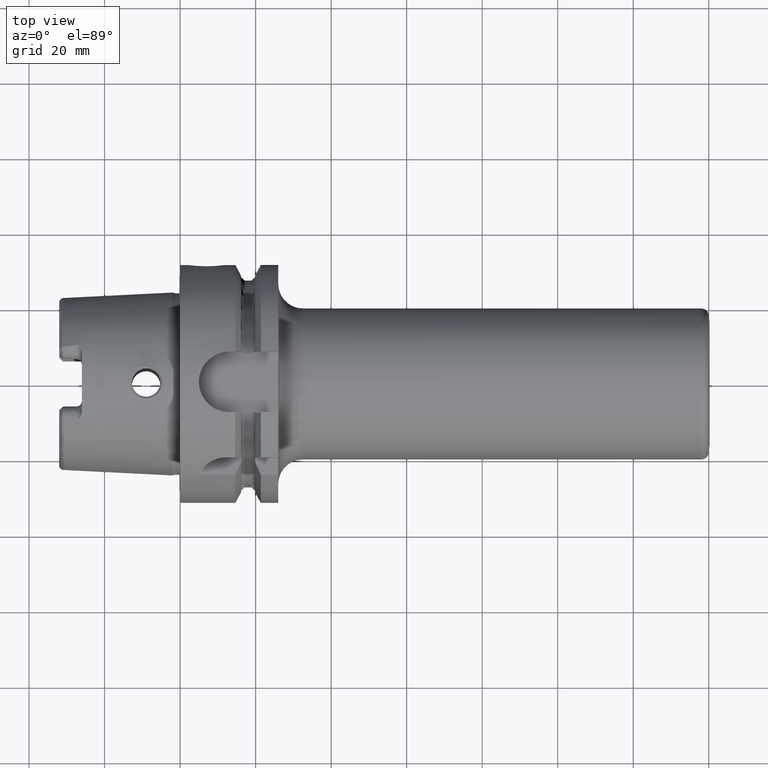
[diagram: clean part render]
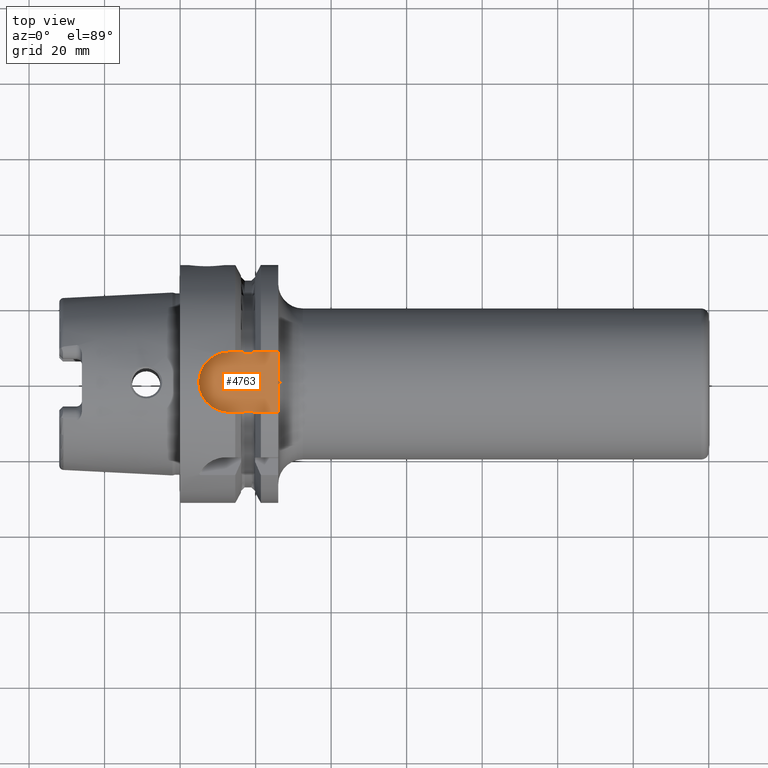
[diagram: same view with one face highlighted and labeled with its STEP entity id]
A machine part, top view. The second image highlights one B-rep face of the part: STEP entity #4763.
In plain terms, the highlighted planar face has unit normal (0, 0, 1).
Its self-contained STEP definition (entity closure, byte-faithful):
#1235=CARTESIAN_POINT('',(1.670911310946E1,8.0175E0,2.64E1));
#1236=CARTESIAN_POINT('',(1.673352951994E1,7.979074793464E0,2.64E1));
#1237=CARTESIAN_POINT('',(1.678346969240E1,7.908219856299E0,2.64E1));
#1238=CARTESIAN_POINT('',(1.686140323483E1,7.821166046425E0,2.64E1));
#1239=CARTESIAN_POINT('',(1.694700550698E1,7.751989508750E0,2.64E1));
#1240=CARTESIAN_POINT('',(1.703710106542E1,7.709022207033E0,2.64E1));
#1241=CARTESIAN_POINT('',(1.709569678300E1,7.7E0,2.64E1));
#1242=CARTESIAN_POINT('',(1.7125E1,7.7E0,2.64E1));
#1286=CARTESIAN_POINT('',(1.7125E1,-7.7E0,2.64E1));
#1287=CARTESIAN_POINT('',(1.709801542874E1,-7.7E0,2.64E1));
#1288=CARTESIAN_POINT('',(1.704428225575E1,-7.707480820281E0,2.64E1));
#1289=CARTESIAN_POINT('',(1.696015728326E1,-7.744711750978E0,2.64E1));
#1290=CARTESIAN_POINT('',(1.688520085667E1,-7.800550899081E0,2.64E1));
#1291=CARTESIAN_POINT('',(1.681986238020E1,-7.866117342831E0,2.64E1));
#1292=CARTESIAN_POINT('',(1.676061128616E1,-7.939936204551E0,2.64E1));
#1293=CARTESIAN_POINT('',(1.672578491309E1,-7.991262830607E0,2.64E1));
#1294=CARTESIAN_POINT('',(1.670911310946E1,-8.0175E0,2.64E1));
#1381=CARTESIAN_POINT('',(1.8875E1,7.7E0,2.64E1));
#1382=CARTESIAN_POINT('',(1.890430468861E1,7.7E0,2.64E1));
#1383=CARTESIAN_POINT('',(1.896290280766E1,7.708993215977E0,2.64E1));
#1384=CARTESIAN_POINT('',(1.905331742183E1,7.752198019553E0,2.64E1));
#1385=CARTESIAN_POINT('',(1.913860453300E1,7.821194226188E0,2.64E1));
#1386=CARTESIAN_POINT('',(1.921661446474E1,7.908317855978E0,2.64E1));
#1387=CARTESIAN_POINT('',(1.926649394598E1,7.979111722839E0,2.64E1));
#1388=CARTESIAN_POINT('',(1.929088689054E1,8.0175E0,2.64E1));
#1436=CARTESIAN_POINT('',(1.929088689054E1,-8.0175E0,2.64E1));
#1437=CARTESIAN_POINT('',(1.927417922618E1,-7.991206394948E0,2.64E1));
#1438=CARTESIAN_POINT('',(1.923922993687E1,-7.939709103662E0,2.64E1));
#1439=CARTESIAN_POINT('',(1.917963781936E1,-7.865495822527E0,2.64E1));
#1440=CARTESIAN_POINT('',(1.911354741171E1,-7.799456458601E0,2.64E1));
#1441=CARTESIAN_POINT('',(1.903907332419E1,-7.744292367168E0,2.64E1));
#1442=CARTESIAN_POINT('',(1.895500739860E1,-7.707298016794E0,2.64E1));
#1443=CARTESIAN_POINT('',(1.890171865616E1,-7.7E0,2.64E1));
#1444=CARTESIAN_POINT('',(1.8875E1,-7.7E0,2.64E1));
#1504=DIRECTION('',(0.E0,1.E0,-5.947311325576E-8));
#1505=VECTOR('',#1504,5.717502602041E0);
#1506=CARTESIAN_POINT('',(2.6E1,2.299997397959E0,2.640000034004E1));
#1507=LINE('',#1506,#1505);
#1545=DIRECTION('',(0.E0,1.E0,4.912076954370E-8));
#1546=VECTOR('',#1545,5.717502153759E0);
#1547=CARTESIAN_POINT('',(2.6E1,-8.0175E0,2.64E1));
#1548=LINE('',#1547,#1546);
#1554=CARTESIAN_POINT('',(2.600076927629E1,2.364265111308E-5,2.64E1));
#1555=CARTESIAN_POINT('',(2.600076927982E1,-2.557803113798E-1,2.64E1));
#1556=CARTESIAN_POINT('',(2.600064848404E1,-7.672253712942E-1,
2.640000003745E1));
#1557=CARTESIAN_POINT('',(2.600022056671E1,-1.534011471662E0,2.639999986894E1));
#1558=CARTESIAN_POINT('',(2.6E1,-2.044733786298E0,2.640000028085E1));
#1559=CARTESIAN_POINT('',(2.6E1,-2.299997846241E0,2.640000028085E1));
#1561=DIRECTION('',(1.E0,0.E0,0.E0));
#1562=VECTOR('',#1561,3.741613109456E0);
#1563=CARTESIAN_POINT('',(1.29675E1,-8.0175E0,2.64E1));
#1564=LINE('',#1563,#1562);
#1565=CARTESIAN_POINT('',(1.29675E1,0.E0,2.64E1));
#1566=DIRECTION('',(0.E0,0.E0,1.E0));
#1567=DIRECTION('',(0.E0,1.E0,0.E0));
#1568=AXIS2_PLACEMENT_3D('',#1565,#1566,#1567);
#1570=DIRECTION('',(-1.E0,0.E0,0.E0));
#1571=VECTOR('',#1570,3.741613109456E0);
#1572=CARTESIAN_POINT('',(1.670911310946E1,8.0175E0,2.64E1));
#1573=LINE('',#1572,#1571);
#1574=CARTESIAN_POINT('',(2.6E1,2.299997397959E0,2.640000034004E1));
#1575=CARTESIAN_POINT('',(2.6E1,2.044732190171E0,2.640000034004E1));
#1576=CARTESIAN_POINT('',(2.600022056693E1,1.534012566594E0,2.639999984132E1));
#1577=CARTESIAN_POINT('',(2.600064847174E1,7.672472108036E-1,2.640000004534E1));
#1578=CARTESIAN_POINT('',(2.600076927277E1,2.558182444043E-1,2.64E1));
#1579=CARTESIAN_POINT('',(2.600076927629E1,2.364265111308E-5,2.64E1));
#1684=DIRECTION('',(1.E0,0.E0,0.E0));
#1685=VECTOR('',#1684,6.709113109456E0);
#1686=CARTESIAN_POINT('',(1.929088689054E1,-8.0175E0,2.64E1));
#1687=LINE('',#1686,#1685);
#1720=DIRECTION('',(-1.E0,0.E0,0.E0));
#1721=VECTOR('',#1720,6.709113109456E0);
#1722=CARTESIAN_POINT('',(2.6E1,8.0175E0,2.64E1));
#1723=LINE('',#1722,#1721);
#2124=DIRECTION('',(1.E0,0.E0,0.E0));
#2125=VECTOR('',#2124,1.75E0);
#2126=CARTESIAN_POINT('',(1.7125E1,-7.7E0,2.64E1));
#2127=LINE('',#2126,#2125);
#2132=DIRECTION('',(1.E0,0.E0,0.E0));
#2133=VECTOR('',#2132,1.75E0);
#2134=CARTESIAN_POINT('',(1.7125E1,7.7E0,2.64E1));
#2135=LINE('',#2134,#2133);
#2938=CARTESIAN_POINT('',(1.29675E1,8.0175E0,2.64E1));
#2939=CARTESIAN_POINT('',(1.29675E1,-8.0175E0,2.64E1));
#2940=VERTEX_POINT('',#2938);
#2941=VERTEX_POINT('',#2939);
#2942=CARTESIAN_POINT('',(1.670911310946E1,-8.0175E0,2.64E1));
#2943=VERTEX_POINT('',#2942);
#2948=CARTESIAN_POINT('',(1.670911310946E1,8.0175E0,2.64E1));
#2949=VERTEX_POINT('',#2948);
#2996=CARTESIAN_POINT('',(1.929088689054E1,-8.0175E0,2.64E1));
#2997=CARTESIAN_POINT('',(2.6E1,-8.0175E0,2.64E1));
#2998=VERTEX_POINT('',#2996);
#2999=VERTEX_POINT('',#2997);
#3000=CARTESIAN_POINT('',(2.6E1,8.0175E0,2.64E1));
#3001=CARTESIAN_POINT('',(1.929088689054E1,8.0175E0,2.64E1));
#3002=VERTEX_POINT('',#3000);
#3003=VERTEX_POINT('',#3001);
#3016=VERTEX_POINT('',#1242);
#3017=VERTEX_POINT('',#1286);
#3018=CARTESIAN_POINT('',(1.8875E1,7.7E0,2.64E1));
#3019=VERTEX_POINT('',#3018);
#3020=CARTESIAN_POINT('',(1.8875E1,-7.7E0,2.64E1));
#3021=VERTEX_POINT('',#3020);
#3125=CARTESIAN_POINT('',(2.6E1,-2.300003185509E0,2.639999972247E1));
#3126=VERTEX_POINT('',#3125);
#3127=VERTEX_POINT('',#1554);
#3128=VERTEX_POINT('',#1574);
#4733=CARTESIAN_POINT('',(0.E0,0.E0,2.64E1));
#4734=DIRECTION('',(0.E0,0.E0,1.E0));
#4735=DIRECTION('',(1.E0,0.E0,0.E0));
#4736=AXIS2_PLACEMENT_3D('',#4733,#4734,#4735);
#4737=PLANE('',#4736);
#4739=ORIENTED_EDGE('',*,*,#4738,.T.);
#4740=ORIENTED_EDGE('',*,*,#4726,.F.);
#4742=ORIENTED_EDGE('',*,*,#4741,.F.);
#4743=ORIENTED_EDGE('',*,*,#4622,.T.);
#4745=ORIENTED_EDGE('',*,*,#4744,.F.);
#4746=ORIENTED_EDGE('',*,*,#4512,.T.);
#4748=ORIENTED_EDGE('',*,*,#4747,.F.);
#4750=ORIENTED_EDGE('',*,*,#4749,.F.);
#4752=ORIENTED_EDGE('',*,*,#4751,.F.);
#4753=ORIENTED_EDGE('',*,*,#4489,.T.);
#4755=ORIENTED_EDGE('',*,*,#4754,.T.);
#4756=ORIENTED_EDGE('',*,*,#4594,.T.);
#4758=ORIENTED_EDGE('',*,*,#4757,.F.);
#4759=ORIENTED_EDGE('',*,*,#4691,.F.);
#4760=ORIENTED_EDGE('',*,*,#4678,.T.);
#4761=EDGE_LOOP('',(#4739,#4740,#4742,#4743,#4745,#4746,#4748,#4750,#4752,#4753,
#4755,#4756,#4758,#4759,#4760));
#4762=FACE_OUTER_BOUND('',#4761,.F.);
#4763=ADVANCED_FACE('',(#4762),#4737,.T.);
#1243=B_SPLINE_CURVE_WITH_KNOTS('',3,(#1235,#1236,#1237,#1238,#1239,#1240,#1241,
#1242),.UNSPECIFIED.,.F.,.F.,(4,1,1,1,1,4),(0.E0,2.E-1,4.E-1,6.E-1,8.E-1,1.E0),
.UNSPECIFIED.);
#1295=B_SPLINE_CURVE_WITH_KNOTS('',3,(#1286,#1287,#1288,#1289,#1290,#1291,#1292,
#1293,#1294),.UNSPECIFIED.,.F.,.F.,(4,1,1,1,1,1,4),(0.E0,1.666666666667E-1,
3.333333333333E-1,5.E-1,6.666666666667E-1,8.333333333333E-1,1.E0),
.UNSPECIFIED.);
#1389=B_SPLINE_CURVE_WITH_KNOTS('',3,(#1381,#1382,#1383,#1384,#1385,#1386,#1387,
#1388),.UNSPECIFIED.,.F.,.F.,(4,1,1,1,1,4),(0.E0,2.E-1,4.E-1,6.E-1,8.E-1,1.E0),
.UNSPECIFIED.);
#1445=B_SPLINE_CURVE_WITH_KNOTS('',3,(#1436,#1437,#1438,#1439,#1440,#1441,#1442,
#1443,#1444),.UNSPECIFIED.,.F.,.F.,(4,1,1,1,1,1,4),(0.E0,1.666666666667E-1,
3.333333333333E-1,5.E-1,6.666666666667E-1,8.333333333333E-1,1.E0),
.UNSPECIFIED.);
#1560=B_SPLINE_CURVE_WITH_KNOTS('',3,(#1554,#1555,#1556,#1557,#1558,#1559),
.UNSPECIFIED.,.F.,.F.,(4,1,1,4),(0.E0,3.333333333333E-1,6.666666666667E-1,1.E0),
.UNSPECIFIED.);
#1569=CIRCLE('',#1568,8.0175E0);
#1580=B_SPLINE_CURVE_WITH_KNOTS('',3,(#1574,#1575,#1576,#1577,#1578,#1579),
.UNSPECIFIED.,.F.,.F.,(4,1,1,4),(0.E0,3.333333333333E-1,6.666666666667E-1,1.E0),
.UNSPECIFIED.);
#4489=EDGE_CURVE('',#2949,#3016,#1243,.T.);
#4512=EDGE_CURVE('',#3017,#2943,#1295,.T.);
#4594=EDGE_CURVE('',#3019,#3003,#1389,.T.);
#4622=EDGE_CURVE('',#2998,#3021,#1445,.T.);
#4678=EDGE_CURVE('',#3128,#3127,#1580,.T.);
#4691=EDGE_CURVE('',#3128,#3002,#1507,.T.);
#4726=EDGE_CURVE('',#2999,#3126,#1548,.T.);
#4738=EDGE_CURVE('',#3127,#3126,#1560,.T.);
#4741=EDGE_CURVE('',#2998,#2999,#1687,.T.);
#4744=EDGE_CURVE('',#3017,#3021,#2127,.T.);
#4747=EDGE_CURVE('',#2941,#2943,#1564,.T.);
#4749=EDGE_CURVE('',#2940,#2941,#1569,.T.);
#4751=EDGE_CURVE('',#2949,#2940,#1573,.T.);
#4754=EDGE_CURVE('',#3016,#3019,#2135,.T.);
#4757=EDGE_CURVE('',#3002,#3003,#1723,.T.);